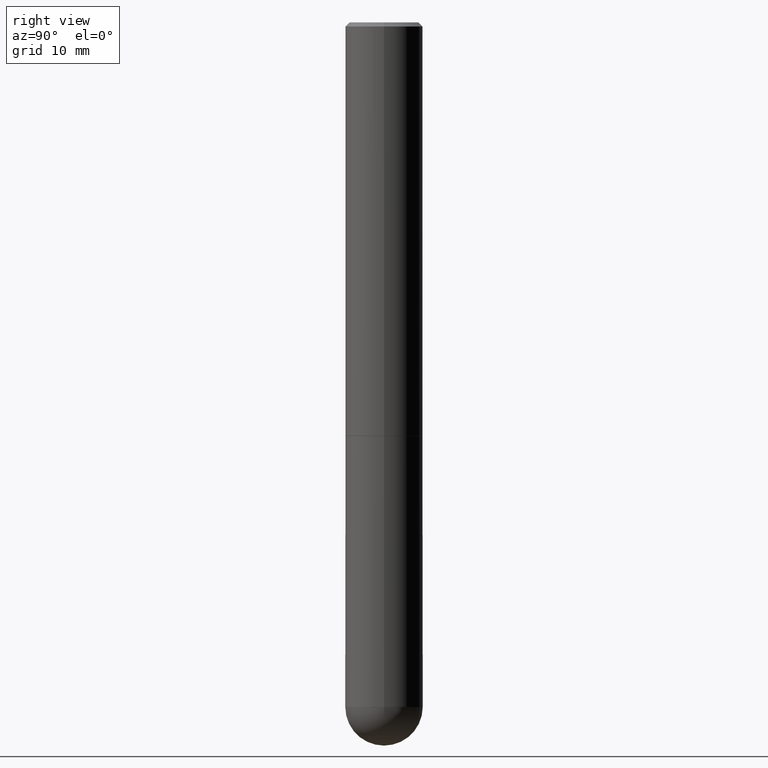
[diagram: clean part render]
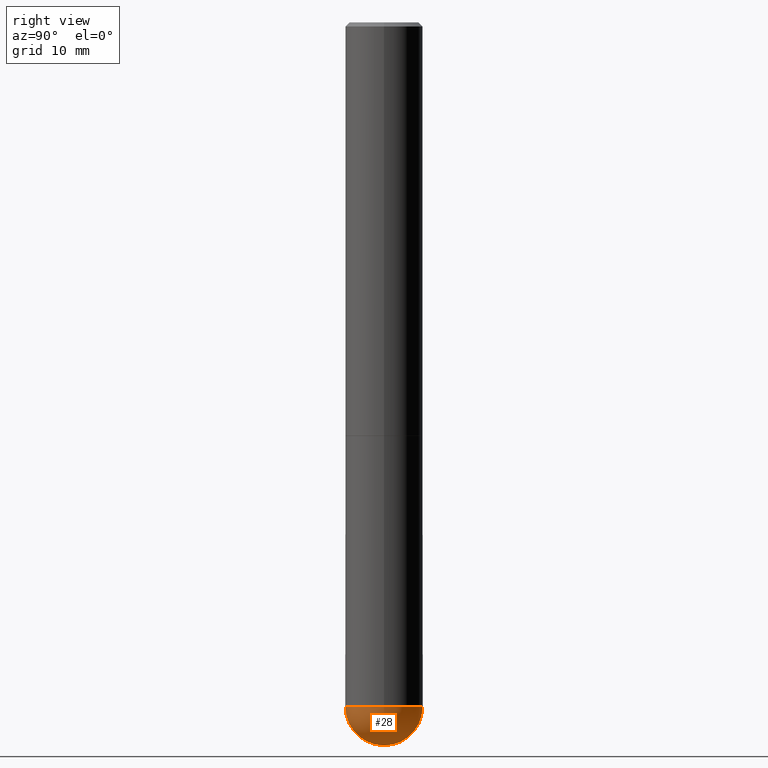
[diagram: same view with one face highlighted and labeled with its STEP entity id]
A machine part, right view. The second image highlights one B-rep face of the part: STEP entity #28.
In plain terms, the highlighted spherical surface has radius 4.7625 mm.
Its self-contained STEP definition (entity closure, byte-faithful):
#3 = VERTEX_POINT ( 'NONE', #144 ) ;
#8 = AXIS2_PLACEMENT_3D ( 'NONE', #118, #32, #339 ) ;
#10 = EDGE_CURVE ( 'NONE', #236, #3, #255, .T. ) ;
#18 = CIRCLE ( 'NONE', #8, 0.1874999999999999722 ) ;
#21 = VERTEX_POINT ( 'NONE', #279 ) ;
#28 = ADVANCED_FACE ( 'NONE', ( #396 ), #251, .T. ) ;
#32 = DIRECTION ( 'NONE',  ( -2.445468806185136597E-29, 3.491481338843145583E-15, 1.000000000000000000 ) ) ;
#46 = DIRECTION ( 'NONE',  ( 1.000000000000000000, -6.982962677686263555E-15, 0.000000000000000000 ) ) ;
#68 = ORIENTED_EDGE ( 'NONE', *, *, #151, .F. ) ;
#76 = DIRECTION ( 'NONE',  ( 6.982962677686266711E-15, 1.000000000000000000, 0.000000000000000000 ) ) ;
#96 = EDGE_CURVE ( 'NONE', #21, #266, #359, .T. ) ;
#98 = ORIENTED_EDGE ( 'NONE', *, *, #96, .T. ) ;
#110 = DIRECTION ( 'NONE',  ( 1.000000000000000000, -6.982962677686265922E-15, 4.883557194083112340E-29 ) ) ;
#116 = DIRECTION ( 'NONE',  ( -1.000000000000000000, 7.105427357601001070E-15, -4.926315508542082329E-29 ) ) ;
#118 = CARTESIAN_POINT ( 'NONE',  ( 8.100615420488263856E-29, -1.156553193491791947E-14, -3.312499999999999556 ) ) ;
#141 = CARTESIAN_POINT ( 'NONE',  ( 7.769495642574377609E-29, -1.203971430305797135E-14, -3.312499999999999556 ) ) ;
#144 = CARTESIAN_POINT ( 'NONE',  ( 0.1874999999999999722, -1.058355280836828072E-14, -3.312499999999999556 ) ) ;
#148 = EDGE_CURVE ( 'NONE', #3, #266, #18, .T. ) ;
#151 = EDGE_CURVE ( 'NONE', #21, #236, #249, .T. ) ;
#175 = DIRECTION ( 'NONE',  ( 6.982962677686266711E-15, 1.000000000000000000, -2.913971193241876428E-15 ) ) ;
#201 = CARTESIAN_POINT ( 'NONE',  ( -1.332267629550109160E-15, -0.1875000000000119349, -3.312499999999999112 ) ) ;
#219 = AXIS2_PLACEMENT_3D ( 'NONE', #333, #390, #46 ) ;
#224 = DIRECTION ( 'NONE',  ( -7.105427357601001070E-15, -1.000000000000000000, 0.000000000000000000 ) ) ;
#236 = VERTEX_POINT ( 'NONE', #201 ) ;
#249 = CIRCLE ( 'NONE', #412, 0.1875000000000002776 ) ;
#251 = SPHERICAL_SURFACE ( 'NONE', #305, 0.1875000000000002776 ) ;
#255 = CIRCLE ( 'NONE', #219, 0.1874999999999999722 ) ;
#266 = VERTEX_POINT ( 'NONE', #403 ) ;
#279 = CARTESIAN_POINT ( 'NONE',  ( 8.236038227695147558E-29, -1.268288599034905401E-14, -3.500000000000000000 ) ) ;
#305 = AXIS2_PLACEMENT_3D ( 'NONE', #141, #329, #175 ) ;
#317 = CARTESIAN_POINT ( 'NONE',  ( 7.769495642574377609E-29, -1.203971430305797135E-14, -3.312499999999999556 ) ) ;
#327 = ORIENTED_EDGE ( 'NONE', *, *, #10, .F. ) ;
#329 = DIRECTION ( 'NONE',  ( -1.000000000000000000, 6.982962677686266711E-15, -4.883557194083112340E-29 ) ) ;
#333 = CARTESIAN_POINT ( 'NONE',  ( 8.100615420488263856E-29, -1.156553193491791947E-14, -3.312499999999999556 ) ) ;
#339 = DIRECTION ( 'NONE',  ( 1.000000000000000000, -6.982962677686263555E-15, 0.000000000000000000 ) ) ;
#349 = EDGE_LOOP ( 'NONE', ( #68, #98, #381, #327 ) ) ;
#359 = CIRCLE ( 'NONE', #397, 0.1875000000000002776 ) ;
#381 = ORIENTED_EDGE ( 'NONE', *, *, #148, .F. ) ;
#390 = DIRECTION ( 'NONE',  ( -2.445468806185136597E-29, 3.491481338843145583E-15, 1.000000000000000000 ) ) ;
#394 = CARTESIAN_POINT ( 'NONE',  ( 7.769495642574377609E-29, -1.203971430305797135E-14, -3.312499999999999556 ) ) ;
#396 = FACE_OUTER_BOUND ( 'NONE', #349, .T. ) ;
#397 = AXIS2_PLACEMENT_3D ( 'NONE', #394, #110, #76 ) ;
#403 = CARTESIAN_POINT ( 'NONE',  ( 1.309305502066255275E-15, 0.1874999999999883149, -3.312500000000000444 ) ) ;
#412 = AXIS2_PLACEMENT_3D ( 'NONE', #317, #116, #224 ) ;